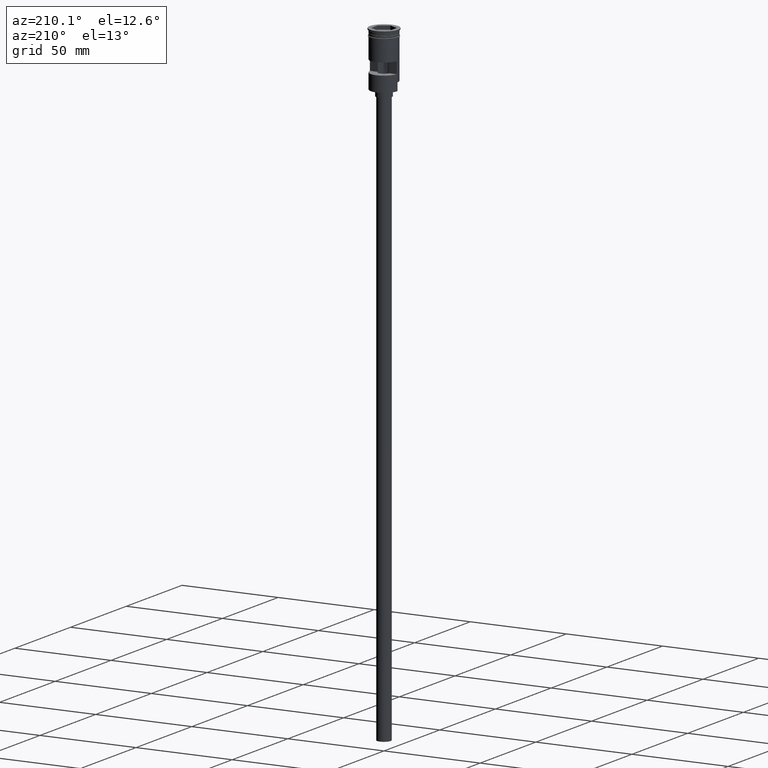
[diagram: clean part render]
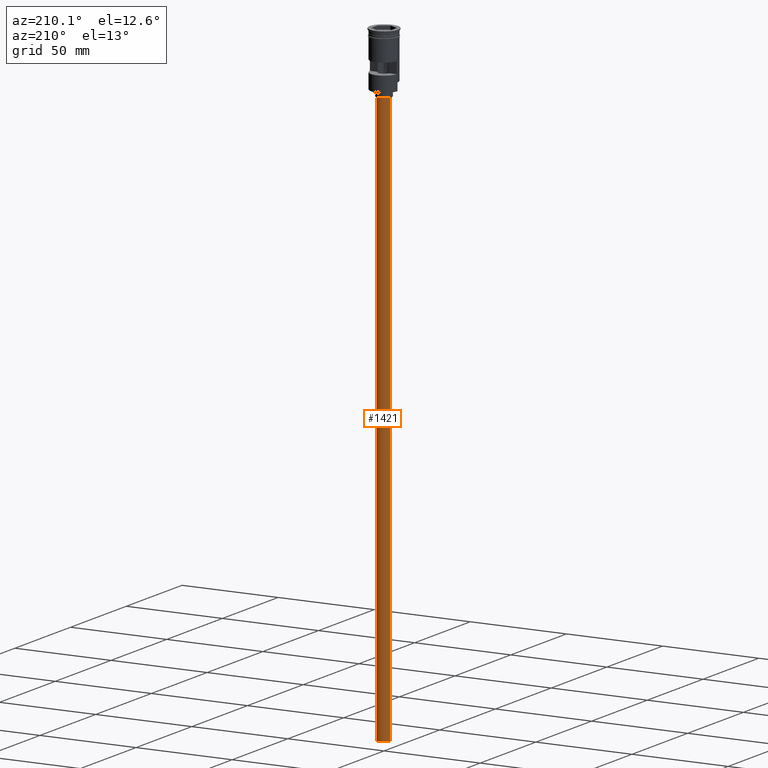
[diagram: same view with one face highlighted and labeled with its STEP entity id]
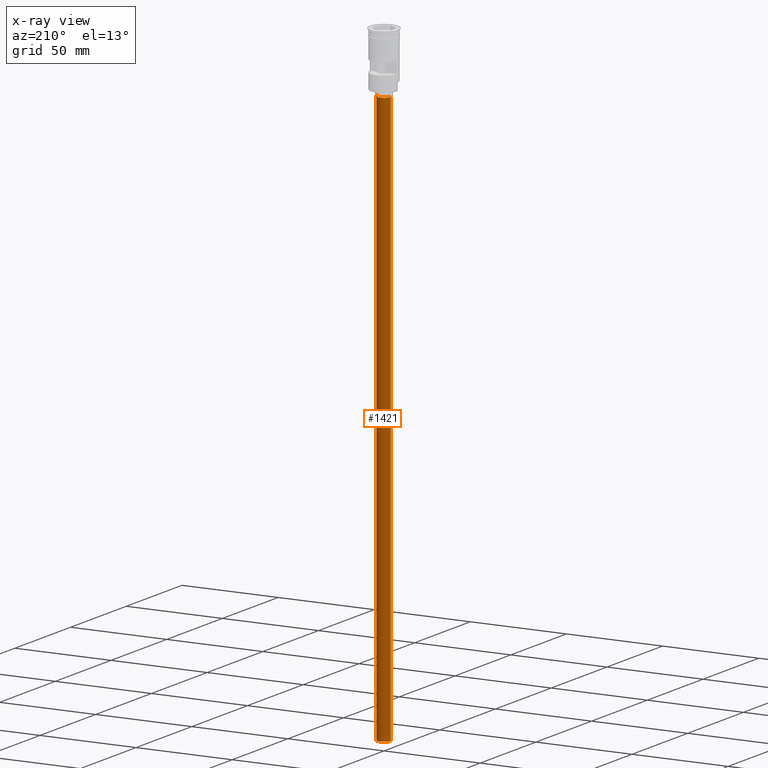
[diagram: x-ray of the same camera — body ghosted, the highlighted face saturated]
A machine part, auxiliary view. The second image highlights one B-rep face of the part: STEP entity #1421.
The next image is the same camera in x-ray: the body ghosted, the highlighted face saturated — about 0% of this face is hidden behind the body in this view.
In plain terms, the highlighted cylindrical surface (edge-blend (fillet) strip) has radius 3.5 mm, axis along (-0, -0, 1).
Its self-contained STEP definition (entity closure, byte-faithful):
#33 = VECTOR ( 'NONE', #124, 1000.000000000000000 ) ;
#65 = VERTEX_POINT ( 'NONE', #1111 ) ;
#107 = ORIENTED_EDGE ( 'NONE', *, *, #713, .T. ) ;
#124 = DIRECTION ( 'NONE',  ( -0.000000000000000000, -0.000000000000000000, 1.000000000000000000 ) ) ;
#134 = CIRCLE ( 'NONE', #1045, 3.500000000000000444 ) ;
#168 = DIRECTION ( 'NONE',  ( 0.000000000000000000, 0.000000000000000000, -1.000000000000000000 ) ) ;
#182 = DIRECTION ( 'NONE',  ( -1.000000000000000000, 0.000000000000000000, 0.000000000000000000 ) ) ;
#183 = ORIENTED_EDGE ( 'NONE', *, *, #868, .F. ) ;
#237 = EDGE_CURVE ( 'NONE', #65, #1551, #1162, .T. ) ;
#336 = CARTESIAN_POINT ( 'NONE',  ( -3.500000000000000444, 4.286263797015737088E-16, -31.50000000000000000 ) ) ;
#394 = DIRECTION ( 'NONE',  ( -0.000000000000000000, -0.000000000000000000, 1.000000000000000000 ) ) ;
#444 = VERTEX_POINT ( 'NONE', #1206 ) ;
#502 = CARTESIAN_POINT ( 'NONE',  ( 0.000000000000000000, 0.000000000000000000, -328.5000000000000000 ) ) ;
#526 = FACE_OUTER_BOUND ( 'NONE', #1053, .T. ) ;
#643 = CYLINDRICAL_SURFACE ( 'NONE', #1020, 3.500000000000000444 ) ;
#713 = EDGE_CURVE ( 'NONE', #1551, #1291, #134, .T. ) ;
#724 = LINE ( 'NONE', #1125, #33 ) ;
#868 = EDGE_CURVE ( 'NONE', #65, #444, #1569, .T. ) ;
#888 = DIRECTION ( 'NONE',  ( -1.000000000000000000, 0.000000000000000000, 0.000000000000000000 ) ) ;
#919 = CARTESIAN_POINT ( 'NONE',  ( 0.000000000000000000, 0.000000000000000000, -31.50000000000000000 ) ) ;
#988 = EDGE_CURVE ( 'NONE', #444, #1291, #724, .T. ) ;
#1001 = DIRECTION ( 'NONE',  ( -0.000000000000000000, -0.000000000000000000, 1.000000000000000000 ) ) ;
#1019 = ORIENTED_EDGE ( 'NONE', *, *, #237, .T. ) ;
#1020 = AXIS2_PLACEMENT_3D ( 'NONE', #502, #1001, #1275 ) ;
#1045 = AXIS2_PLACEMENT_3D ( 'NONE', #919, #168, #888 ) ;
#1053 = EDGE_LOOP ( 'NONE', ( #183, #1019, #107, #1187 ) ) ;
#1103 = AXIS2_PLACEMENT_3D ( 'NONE', #1300, #1188, #182 ) ;
#1111 = CARTESIAN_POINT ( 'NONE',  ( -3.500000000000000444, 4.286263797015737088E-16, -328.5000000000000000 ) ) ;
#1125 = CARTESIAN_POINT ( 'NONE',  ( 3.500000000000000444, 0.000000000000000000, -328.5000000000000000 ) ) ;
#1162 = LINE ( 'NONE', #1415, #1561 ) ;
#1187 = ORIENTED_EDGE ( 'NONE', *, *, #988, .F. ) ;
#1188 = DIRECTION ( 'NONE',  ( 0.000000000000000000, 0.000000000000000000, -1.000000000000000000 ) ) ;
#1206 = CARTESIAN_POINT ( 'NONE',  ( 3.500000000000000444, 0.000000000000000000, -328.5000000000000000 ) ) ;
#1275 = DIRECTION ( 'NONE',  ( 1.000000000000000000, 0.000000000000000000, 0.000000000000000000 ) ) ;
#1291 = VERTEX_POINT ( 'NONE', #1425 ) ;
#1300 = CARTESIAN_POINT ( 'NONE',  ( 0.000000000000000000, 0.000000000000000000, -328.5000000000000000 ) ) ;
#1415 = CARTESIAN_POINT ( 'NONE',  ( -3.500000000000000444, 4.286263797015737088E-16, -328.5000000000000000 ) ) ;
#1421 = ADVANCED_FACE ( 'NONE', ( #526 ), #643, .T. ) ;
#1425 = CARTESIAN_POINT ( 'NONE',  ( 3.500000000000000444, 0.000000000000000000, -31.50000000000000000 ) ) ;
#1551 = VERTEX_POINT ( 'NONE', #336 ) ;
#1561 = VECTOR ( 'NONE', #394, 1000.000000000000000 ) ;
#1569 = CIRCLE ( 'NONE', #1103, 3.500000000000000444 ) ;